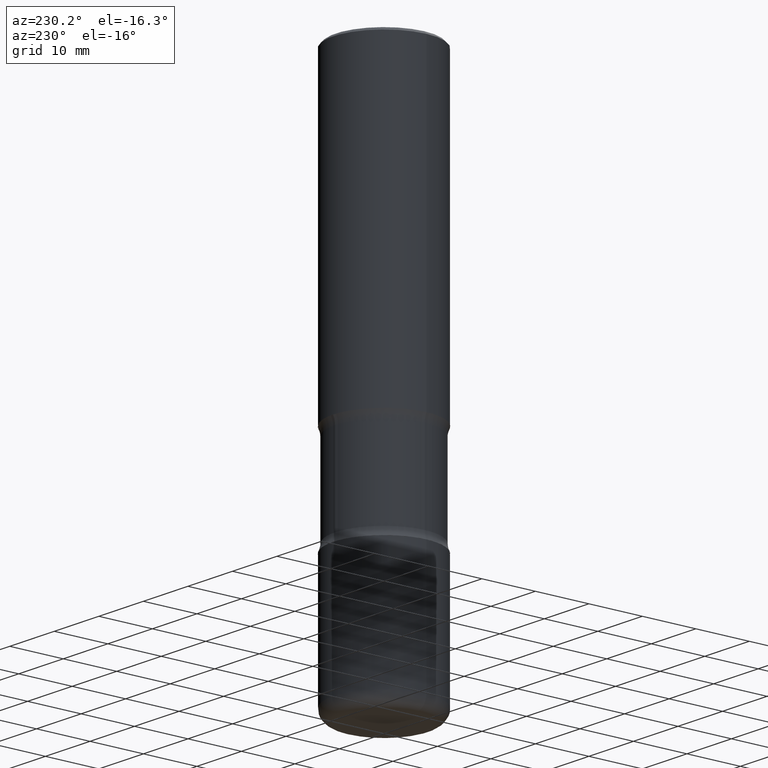
[diagram: clean part render]
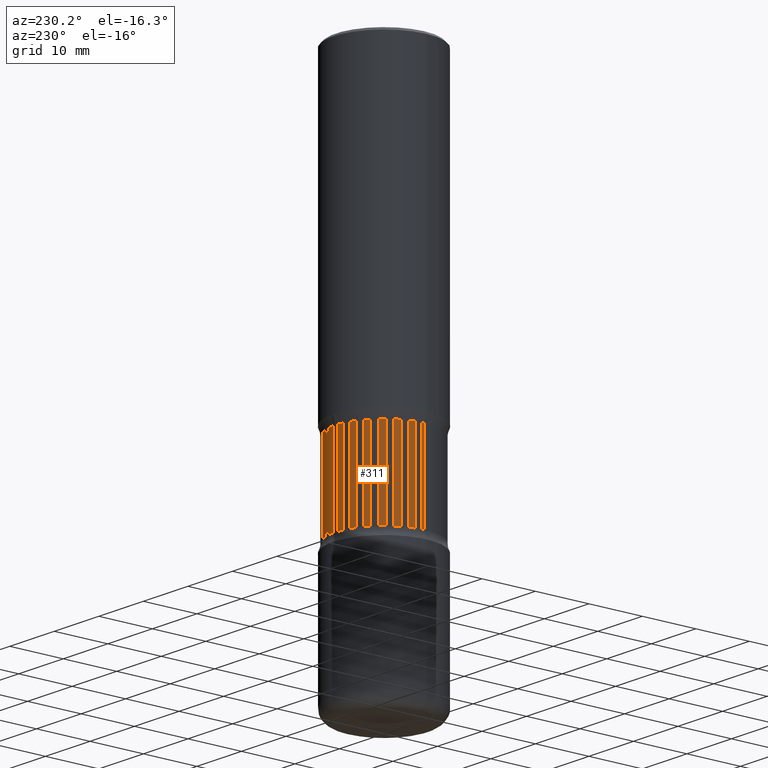
[diagram: same view with one face highlighted and labeled with its STEP entity id]
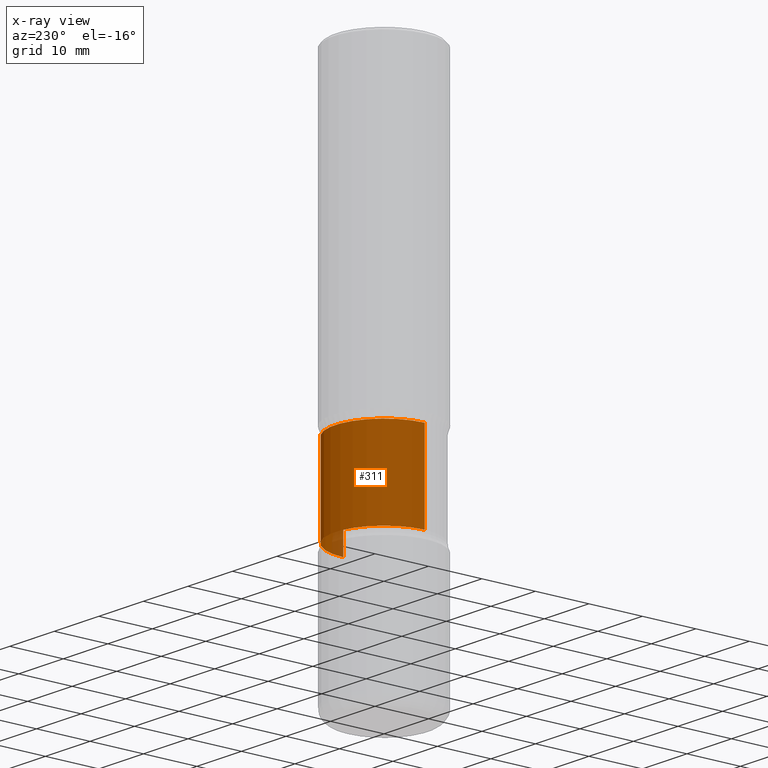
[diagram: x-ray of the same camera — body ghosted, the highlighted face saturated]
A machine part, auxiliary view. The second image highlights one B-rep face of the part: STEP entity #311.
The next image is the same camera in x-ray: the body ghosted, the highlighted face saturated — about 2% of this face is hidden behind the body in this view.
In plain terms, the highlighted cylindrical surface (partial cylindrical patch) has radius 9.144 mm, axis along (-0, 0, 1).
Its self-contained STEP definition (entity closure, byte-faithful):
#6 = EDGE_CURVE ( 'NONE', #21, #424, #68, .T. ) ;
#18 = DIRECTION ( 'NONE',  ( 1.000000000000000000, -6.982962677686264344E-15, 0.000000000000000000 ) ) ;
#21 = VERTEX_POINT ( 'NONE', #598 ) ;
#38 = VECTOR ( 'NONE', #436, 39.37007874015748143 ) ;
#68 = CIRCLE ( 'NONE', #205, 0.3599999999999995981 ) ;
#90 = CARTESIAN_POINT ( 'NONE',  ( 7.191214752716293962E-29, -1.026714879748976790E-14, -2.940628289564808817 ) ) ;
#117 = ORIENTED_EDGE ( 'NONE', *, *, #485, .T. ) ;
#130 = CIRCLE ( 'NONE', #581, 0.3599999999999996536 ) ;
#148 = DIRECTION ( 'NONE',  ( -2.445468806185136597E-29, 3.491481338843145583E-15, 1.000000000000000000 ) ) ;
#159 = ORIENTED_EDGE ( 'NONE', *, *, #666, .T. ) ;
#182 = CARTESIAN_POINT ( 'NONE',  ( -0.3599999999999995981, -5.348236067998544144E-15, -2.309371710435190739 ) ) ;
#185 = CARTESIAN_POINT ( 'NONE',  ( 5.502304813916557343E-29, -7.855833012397078448E-15, -2.250000000000000000 ) ) ;
#190 = CARTESIAN_POINT ( 'NONE',  ( 0.3599999999999995981, -1.036969957636413194E-14, -2.250000000000000000 ) ) ;
#205 = AXIS2_PLACEMENT_3D ( 'NONE', #350, #459, #660 ) ;
#246 = CARTESIAN_POINT ( 'NONE',  ( -0.3599999999999996536, -7.759551853091235175E-15, -2.940628289564808817 ) ) ;
#254 = CARTESIAN_POINT ( 'NONE',  ( 0.3599999999999996536, -1.278101536145682139E-14, -2.940628289564808817 ) ) ;
#311 = ADVANCED_FACE ( 'NONE', ( #480 ), #729, .T. ) ;
#320 = CARTESIAN_POINT ( 'NONE',  ( -0.3599999999999995981, -5.297879163660720240E-15, -2.250000000000000000 ) ) ;
#325 = LINE ( 'NONE', #320, #521 ) ;
#350 = CARTESIAN_POINT ( 'NONE',  ( 5.647496479755672050E-29, -8.063128231436745322E-15, -2.309371710435190739 ) ) ;
#358 = EDGE_LOOP ( 'NONE', ( #159, #117, #693, #415 ) ) ;
#360 = DIRECTION ( 'NONE',  ( -2.445468806185136597E-29, 3.491481338843145583E-15, 1.000000000000000000 ) ) ;
#375 = VERTEX_POINT ( 'NONE', #246 ) ;
#381 = DIRECTION ( 'NONE',  ( -2.445468806185136877E-29, 3.491481338843145188E-15, 1.000000000000000000 ) ) ;
#389 = AXIS2_PLACEMENT_3D ( 'NONE', #185, #360, #725 ) ;
#415 = ORIENTED_EDGE ( 'NONE', *, *, #483, .F. ) ;
#424 = VERTEX_POINT ( 'NONE', #182 ) ;
#436 = DIRECTION ( 'NONE',  ( -2.445468806185136877E-29, 3.491481338843145188E-15, 1.000000000000000000 ) ) ;
#459 = DIRECTION ( 'NONE',  ( -2.445468806185136597E-29, 3.491481338843145583E-15, 1.000000000000000000 ) ) ;
#480 = FACE_OUTER_BOUND ( 'NONE', #358, .T. ) ;
#483 = EDGE_CURVE ( 'NONE', #542, #21, #741, .T. ) ;
#485 = EDGE_CURVE ( 'NONE', #375, #424, #325, .T. ) ;
#521 = VECTOR ( 'NONE', #381, 39.37007874015748143 ) ;
#542 = VERTEX_POINT ( 'NONE', #254 ) ;
#581 = AXIS2_PLACEMENT_3D ( 'NONE', #90, #148, #18 ) ;
#598 = CARTESIAN_POINT ( 'NONE',  ( 0.3599999999999995981, -1.057699479540379881E-14, -2.309371710435190739 ) ) ;
#660 = DIRECTION ( 'NONE',  ( 1.000000000000000000, -6.982962677686267499E-15, 0.000000000000000000 ) ) ;
#666 = EDGE_CURVE ( 'NONE', #542, #375, #130, .T. ) ;
#693 = ORIENTED_EDGE ( 'NONE', *, *, #6, .F. ) ;
#725 = DIRECTION ( 'NONE',  ( 1.000000000000000000, -6.982962677686267499E-15, 0.000000000000000000 ) ) ;
#729 = CYLINDRICAL_SURFACE ( 'NONE', #389, 0.3599999999999995981 ) ;
#741 = LINE ( 'NONE', #190, #38 ) ;